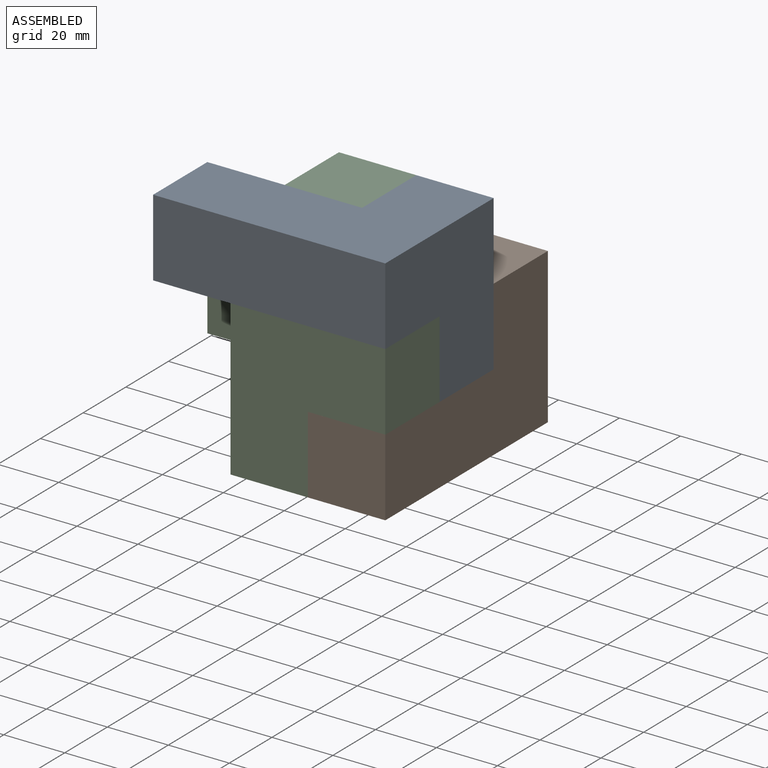
[diagram: assembled view]
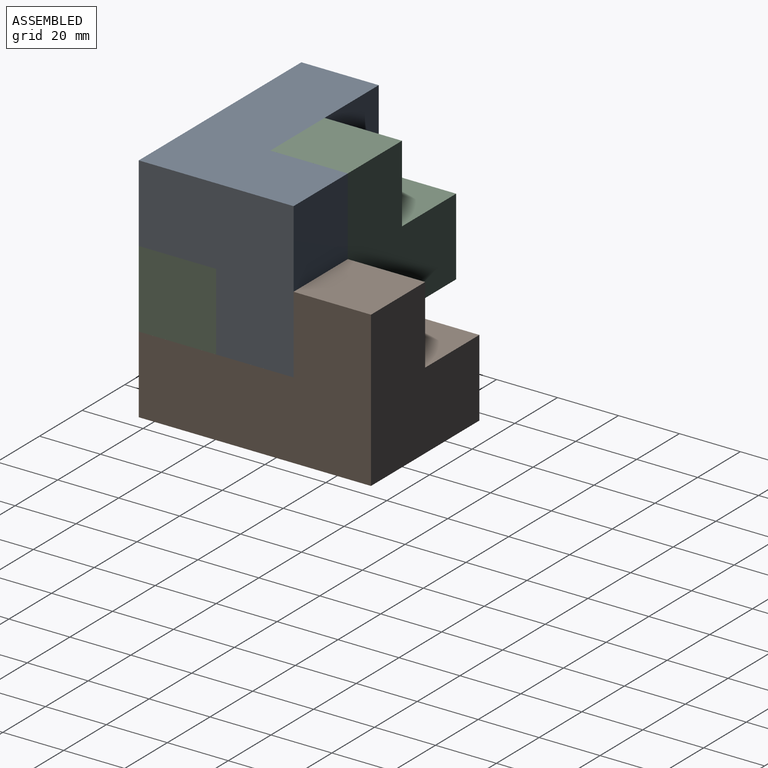
[diagram: assembled view, second angle]
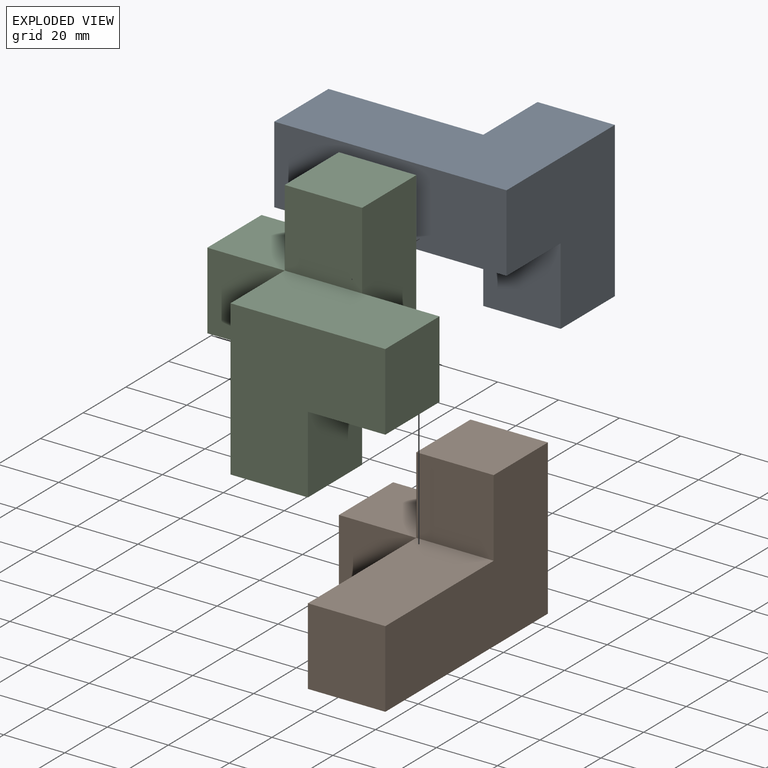
[diagram: exploded view]
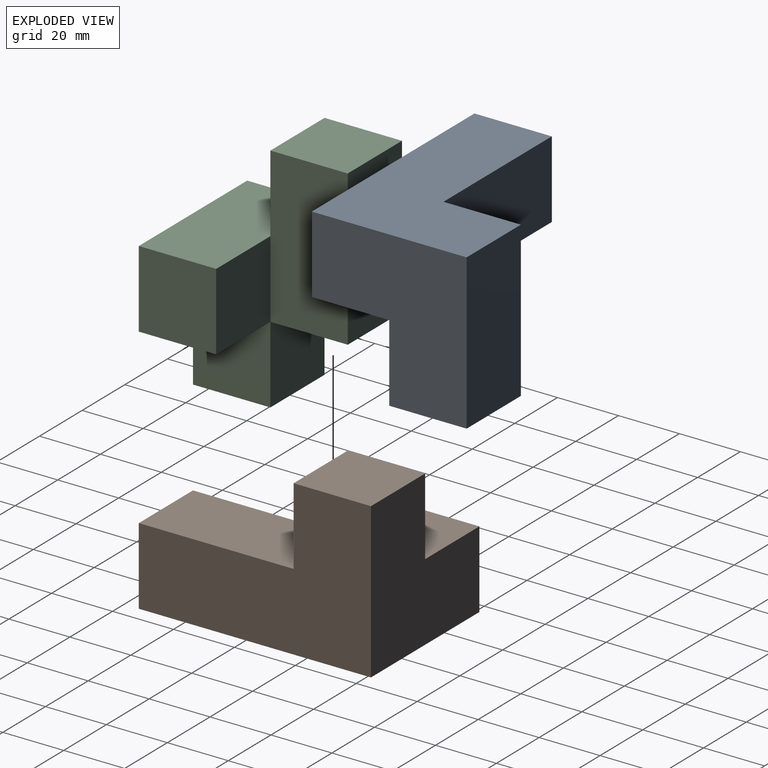
[diagram: exploded view, second angle]
ASSEMBLY  parts=3 mates=2
PART A: 10 faces, bbox 50.8x76.2x50.8 mm
  f0: plane 50.8x25.4mm, normal (0,0,1), area 1290.3mm2, adj f1,f2,f3,f6
  f1: plane 76.2x25.4mm, normal (-1,0,0), area 1935.5mm2, adj f0,f2,f4,f5,f9
  f2: plane 25.4x25.4mm, normal (0,-1,0), area 645.2mm2, adj f0,f1,f3,f5
  f3: plane 76.2x50.8mm, normal (1,0,0), area 2580.6mm2, adj f0,f2,f4,f5,f6,f8
  f4: plane 50.8x50.8mm, normal (0,1,0), area 1935.5mm2, adj f1,f3,f5,f7,f8,f9
  f5: plane 76.2x25.4mm, normal (0,0,-1), area 1935.5mm2, adj f1,f2,f3,f4
  f6: plane 50.8x25.4mm, normal (0,-1,0), area 1290.3mm2, adj f0,f3,f7,f8,f9
  f7: plane 25.4x25.4mm, normal (-1,0,0), area 645.2mm2, adj f4,f6,f8,f9
  f8: plane 50.8x25.4mm, normal (0,0,1), area 1290.3mm2, adj f3,f4,f6,f7
  f9: plane 25.4x25.4mm, normal (0,0,-1), area 645.2mm2, adj f1,f4,f6,f7
PART B: 12 faces, bbox 50.8x50.8x76.2 mm
  f0: plane 25.4x25.4mm, normal (0,-1,0), area 645.2mm2, adj f6,f7,f8,f10
  f1: plane 50.8x25.4mm, normal (1,0,0), area 1290.3mm2, adj f2,f4,f5,f8
  f2: plane 76.2x50.8mm, normal (0,1,0), area 2580.6mm2, adj f1,f3,f5,f6,f7,f8
  f3: plane 76.2x50.8mm, normal (-1,0,0), area 2580.6mm2, adj f2,f4,f5,f6,f9,f11
  f4: plane 50.8x25.4mm, normal (0,-1,0), area 1290.3mm2, adj f1,f3,f5,f11
  f5: plane 25.4x25.4mm, normal (0,0,1), area 645.2mm2, adj f1,f2,f3,f4
  f6: plane 50.8x50.8mm, normal (0,0,-1), area 1935.5mm2, adj f0,f2,f3,f7,f9,f10
  f7: plane 25.4x25.4mm, normal (1,0,0), area 645.2mm2, adj f0,f2,f6,f8
  f8: plane 25.4x25.4mm, normal (0,0,1), area 645.2mm2, adj f0,f1,f2,f7
  f9: plane 25.4x25.4mm, normal (0,-1,0), area 645.2mm2, adj f3,f6,f10,f11
  f10: plane 25.4x25.4mm, normal (1,0,0), area 645.2mm2, adj f0,f6,f9,f11
  f11: plane 25.4x25.4mm, normal (0,0,1), area 645.2mm2, adj f3,f4,f9,f10
PART C: 18 faces, bbox 76.2x50.8x76.2 mm
  f0: plane 25.4x25.4mm, normal (0,1,0), area 645.2mm2, adj f1,f5,f6,f11
  f1: plane 50.8x25.4mm, normal (0,0,1), area 1290.3mm2, adj f0,f2,f6,f7,f9
  f2: plane 50.8x25.4mm, normal (-1,0,0), area 1290.3mm2, adj f1,f3,f7,f8,f10
  f3: plane 25.4x25.4mm, normal (0,0,-1), area 645.2mm2, adj f2,f4,f7,f8
  f4: plane 25.4x25.4mm, normal (1,0,0), area 645.2mm2, adj f3,f5,f7,f8
  f5: plane 25.4x25.4mm, normal (0,0,-1), area 645.2mm2, adj f0,f4,f6,f7
  f6: plane 25.4x25.4mm, normal (1,0,0), area 645.2mm2, adj f0,f1,f5,f7
  f7: plane 50.8x50.8mm, normal (0,-1,0), area 1935.5mm2, adj f1,f2,f3,f4,f5,f6
  f8: plane 25.4x25.4mm, normal (0,1,0), area 645.2mm2, adj f2,f3,f4,f12
  f9: plane 25.4x25.4mm, normal (0,-1,0), area 645.2mm2, adj f1,f11,f15,f16
  f10: plane 25.4x25.4mm, normal (0,-1,0), area 645.2mm2, adj f2,f12,f13,f14
  f11: plane 50.8x25.4mm, normal (1,0,0), area 1290.3mm2, adj f0,f9,f12,f16,f17
  f12: plane 50.8x25.4mm, normal (0,0,-1), area 1290.3mm2, adj f8,f10,f11,f13,f17
  f13: plane 25.4x25.4mm, normal (-1,0,0), area 645.2mm2, adj f10,f12,f14,f17
  f14: plane 25.4x25.4mm, normal (0,0,1), area 645.2mm2, adj f10,f13,f15,f17
  f15: plane 25.4x25.4mm, normal (-1,0,0), area 645.2mm2, adj f9,f14,f16,f17
  f16: plane 25.4x25.4mm, normal (0,0,1), area 645.2mm2, adj f9,f11,f15,f17
  f17: plane 50.8x50.8mm, normal (0,1,0), area 1935.5mm2, adj f11,f12,f13,f14,f15,f16
PLACE A rot(axis=(-0.58,-0.58,-0.58),120deg) t=(0,-12.7,63.5)mm
PLACE B rot(axis=(0,0.71,-0.71),180deg) t=(38.1,63.5,0)mm
PLACE C t=(-12.7,12.7,50.8)mm
MATE fastened A.f9 <-> C.f0  axis (0,-1,0) through (25.4,12.7,38.1)mm
MATE fastened B.f4 <-> C.f5  axis (0,0,1) through (25.4,-12.7,25.4)mm
